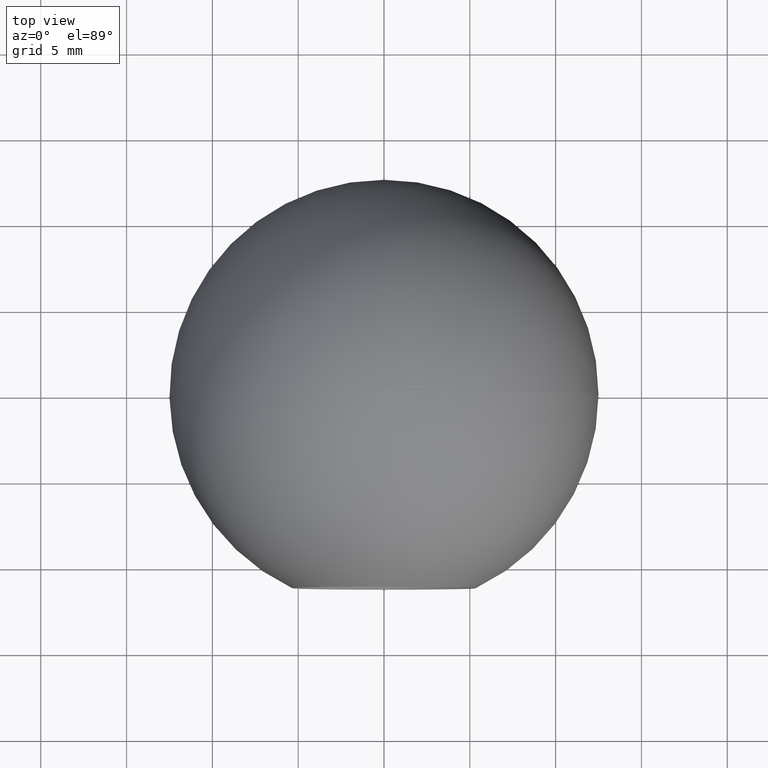
[diagram: clean part render]
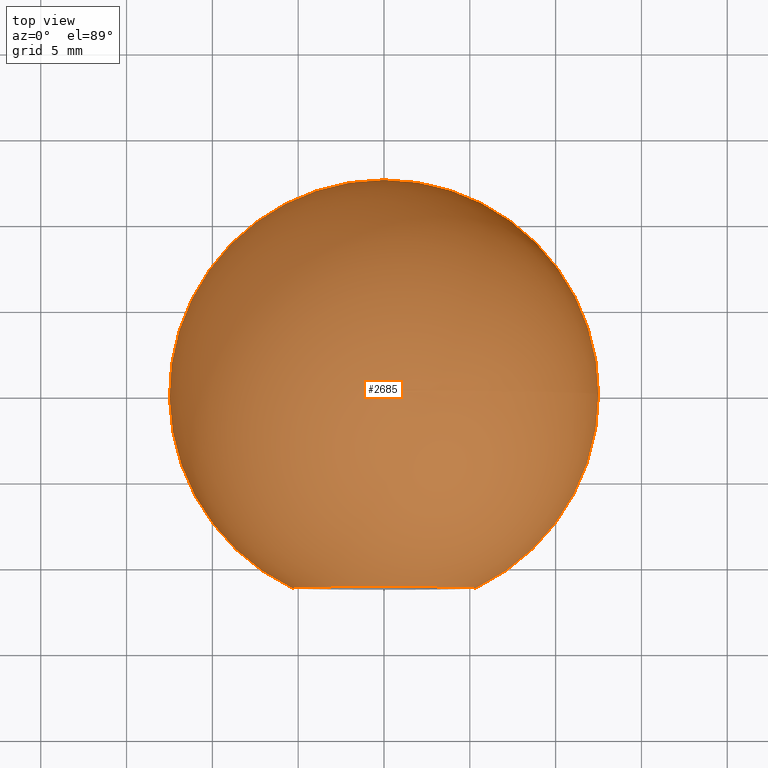
[diagram: same view with one face highlighted and labeled with its STEP entity id]
A machine part, top view. The second image highlights one B-rep face of the part: STEP entity #2685.
In plain terms, the highlighted spherical surface has radius 12.5 mm.
Its self-contained STEP definition (entity closure, byte-faithful):
#111 = AXIS2_PLACEMENT_3D ( 'NONE', #2383, #10674, #1443 ) ;
#636 = AXIS2_PLACEMENT_3D ( 'NONE', #10938, #6858, #7693 ) ;
#1130 = EDGE_CURVE ( 'NONE', #1519, #9566, #11875, .T. ) ;
#1443 = DIRECTION ( 'NONE',  ( 1.000000000000000000, 0.0000000000000000000, 0.0000000000000000000 ) ) ;
#1519 = VERTEX_POINT ( 'NONE', #5612 ) ;
#1717 = DIRECTION ( 'NONE',  ( 1.000000000000000000, 0.0000000000000000000, -1.224646799147353200E-016 ) ) ;
#2272 = AXIS2_PLACEMENT_3D ( 'NONE', #7948, #2788, #1717 ) ;
#2364 = EDGE_CURVE ( 'NONE', #1519, #3524, #8276, .T. ) ;
#2383 = CARTESIAN_POINT ( 'NONE',  ( -1.090719414508469100E-017, -11.29723417478809300, 0.0000000000000000000 ) ) ;
#2677 = DIRECTION ( 'NONE',  ( 0.0000000000000000000, 0.0000000000000000000, -1.000000000000000000 ) ) ;
#2685 = ADVANCED_FACE ( 'NONE', ( #10245 ), #9580, .T. ) ;
#2788 = DIRECTION ( 'NONE',  ( 1.224646799147353200E-016, -5.613030614964589700E-035, 1.000000000000000000 ) ) ;
#3524 = VERTEX_POINT ( 'NONE', #10489 ) ;
#5031 = CARTESIAN_POINT ( 'NONE',  ( 5.350000000000003200, -11.29723417478809300, 0.0000000000000000000 ) ) ;
#5116 = AXIS2_PLACEMENT_3D ( 'NONE', #11107, #2677, #12004 ) ;
#5319 = EDGE_CURVE ( 'NONE', #9566, #3524, #7588, .T. ) ;
#5612 = CARTESIAN_POINT ( 'NONE',  ( 7.711334836214583000E-016, 12.50000000000000000, 0.0000000000000000000 ) ) ;
#5864 = ORIENTED_EDGE ( 'NONE', *, *, #2364, .T. ) ;
#6858 = DIRECTION ( 'NONE',  ( -0.0000000000000000000, 0.0000000000000000000, 1.000000000000000000 ) ) ;
#7588 = CIRCLE ( 'NONE', #111, 5.350000000000003200 ) ;
#7693 = DIRECTION ( 'NONE',  ( 1.000000000000000000, -4.583387323490006000E-019, 0.0000000000000000000 ) ) ;
#7948 = CARTESIAN_POINT ( 'NONE',  ( 0.0000000000000000000, 0.0000000000000000000, 0.0000000000000000000 ) ) ;
#8276 = CIRCLE ( 'NONE', #2272, 12.50000000000000000 ) ;
#9566 = VERTEX_POINT ( 'NONE', #5031 ) ;
#9580 = SPHERICAL_SURFACE ( 'NONE', #636, 12.50000000000000000 ) ;
#10036 = ORIENTED_EDGE ( 'NONE', *, *, #5319, .F. ) ;
#10245 = FACE_OUTER_BOUND ( 'NONE', #12629, .T. ) ;
#10489 = CARTESIAN_POINT ( 'NONE',  ( -5.350000000000003200, -11.29723417478809300, 6.551860375438343600E-016 ) ) ;
#10674 = DIRECTION ( 'NONE',  ( -4.583387323490006000E-019, -1.000000000000000000, -0.0000000000000000000 ) ) ;
#10938 = CARTESIAN_POINT ( 'NONE',  ( 0.0000000000000000000, 0.0000000000000000000, 0.0000000000000000000 ) ) ;
#11107 = CARTESIAN_POINT ( 'NONE',  ( 0.0000000000000000000, 0.0000000000000000000, 0.0000000000000000000 ) ) ;
#11875 = CIRCLE ( 'NONE', #5116, 12.50000000000000000 ) ;
#12004 = DIRECTION ( 'NONE',  ( -1.000000000000000000, 0.0000000000000000000, 0.0000000000000000000 ) ) ;
#12187 = ORIENTED_EDGE ( 'NONE', *, *, #1130, .F. ) ;
#12629 = EDGE_LOOP ( 'NONE', ( #12187, #5864, #10036 ) ) ;